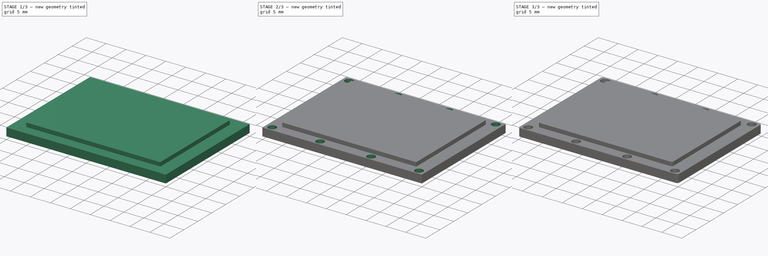
[diagram: build sequence overview — one tinted view per stage of 3, left to right]
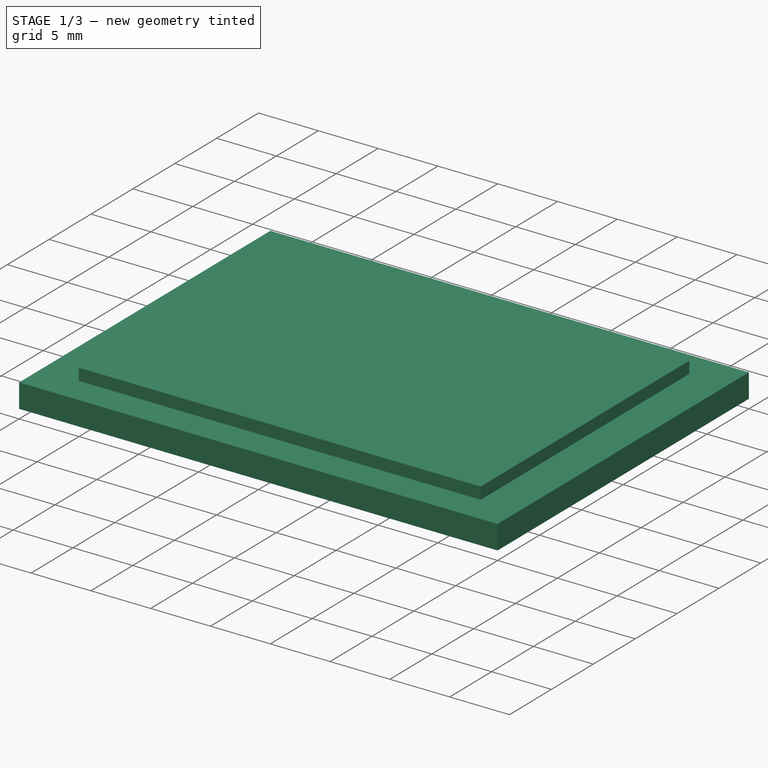
[diagram: stage 1 of 3 — iso view after this stage's code; geometry added in this stage tinted green]
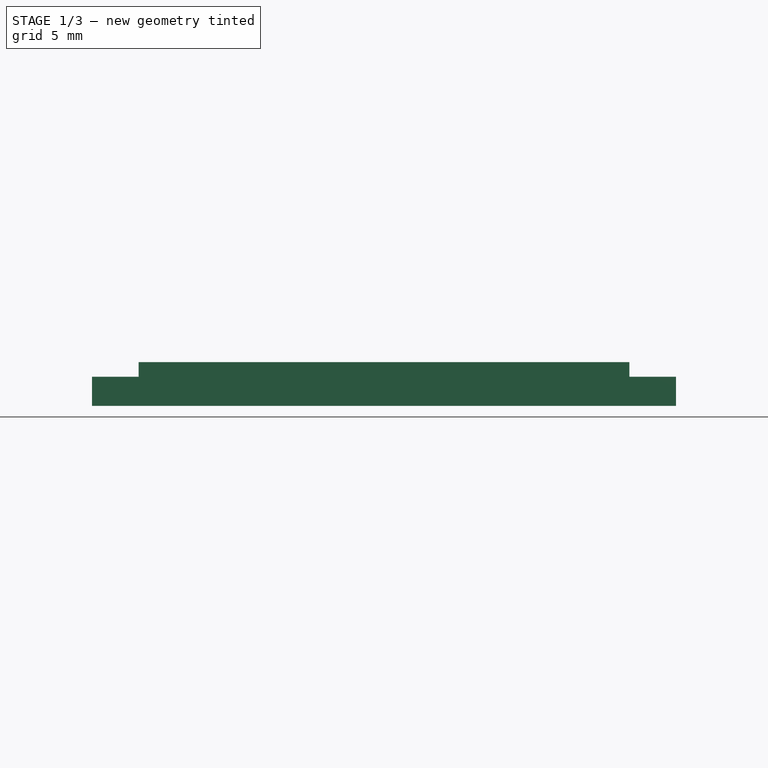
[diagram: stage 1 of 3 — front view after this stage's code; geometry added in this stage tinted green]
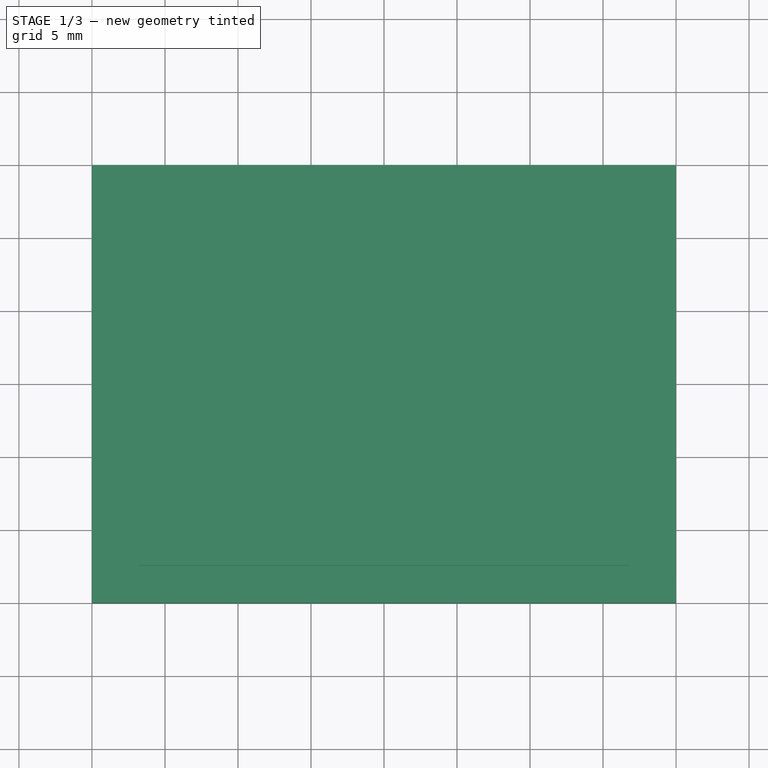
[diagram: stage 1 of 3 — top view after this stage's code; geometry added in this stage tinted green]
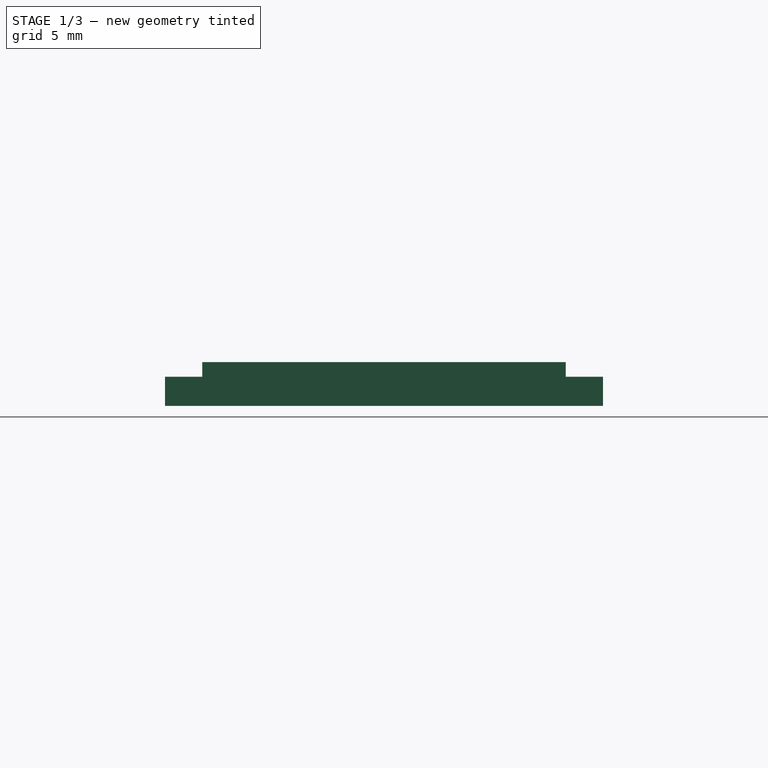
[diagram: stage 1 of 3 — right view after this stage's code; geometry added in this stage tinted green]
FCSTD DOCUMENT  (FreeCAD 0.18.4R)
Label: Sample_Holder_MKID_Cover_v1
License: All rights reserved
LicenseURL: http://en.wikipedia.org/wiki/All_rights_reserved
objects: Sketcher::SketchObject×4, PartDesign::Pad×2, PartDesign::Pocket×2, PartDesign::Fillet×1, PartDesign::Body×1
note: 14 computed .brp shape members not serialized (recipe doc carries the construction recipe); baked Part::Feature solids carry a one-line shape summary decoded from their .brp

FEATURE [Sketcher::SketchObject] Sketch
  MapMode = 5
  Placement = pos=(0,0,2) rot=(0,0,1;0rad)
  sketch-geometry (4):
    g0: LineSegment StartX=-20 StartY=15 StartZ=0 EndX=20 EndY=15 EndZ=0
    g1: LineSegment StartX=20 StartY=15 StartZ=0 EndX=20 EndY=-15 EndZ=0
    g2: LineSegment StartX=20 StartY=-15 StartZ=0 EndX=-20 EndY=-15 EndZ=0
    g3: LineSegment StartX=-20 StartY=-15 StartZ=0 EndX=-20 EndY=15 EndZ=0
  constraints (12):
    c: Coincident(g0,g1)
    c: Coincident(g1,g2)
    c: Coincident(g2,g3)
    c: Coincident(g3,g0)
    c: Horizontal(g0)
    c: Horizontal(g2)
    c: Vertical(g1)
    c: Vertical(g3)
    c: DistanceX(g2,g2) = 40
    c: DistanceY(g1,g1) = 30
    c: DistanceY(g-1,g0) = 15
    c: DistanceX(g0,g-1) = 20
FEATURE [PartDesign::Pad] Pad
  Length = 2
  Length2 = 100
  Placement = pos=(0,0,2) rot=(0,0,1;0rad)
  Profile = -> Sketch
  Type = 0
FEATURE [Sketcher::SketchObject] Sketch001
  MapMode = 5
  Placement = pos=(0,0,4) rot=(0,0,1;0rad)
  Support = -> [Pad]
  sketch-geometry (4):
    g0: LineSegment StartX=-16.8 StartY=12.45 StartZ=0 EndX=16.8 EndY=12.45 EndZ=0
    g1: LineSegment StartX=16.8 StartY=12.45 StartZ=0 EndX=16.8 EndY=-12.45 EndZ=0
    g2: LineSegment StartX=16.8 StartY=-12.45 StartZ=0 EndX=-16.8 EndY=-12.45 EndZ=0
    g3: LineSegment StartX=-16.8 StartY=-12.45 StartZ=0 EndX=-16.8 EndY=12.45 EndZ=0
  constraints (12):
    c: Coincident(g0,g1)
    c: Coincident(g1,g2)
    c: Coincident(g2,g3)
    c: Coincident(g3,g0)
    c: Horizontal(g0)
    c: Horizontal(g2)
    c: Vertical(g1)
    c: Vertical(g3)
    c: DistanceX(g2,g2) = 33.6
    c: DistanceY(g1,g1) = 24.9
    c: DistanceX(g-1,g0) = 16.8
    c: DistanceY(g1,g-1) = 12.45
FEATURE [PartDesign::Pad] Pad001
  BaseFeature = -> Pad
  Length = 1
  Length2 = 100
  Placement = pos=(0,0,2) rot=(0,0,1;0rad)
  Profile = -> Sketch001
  Type = 0
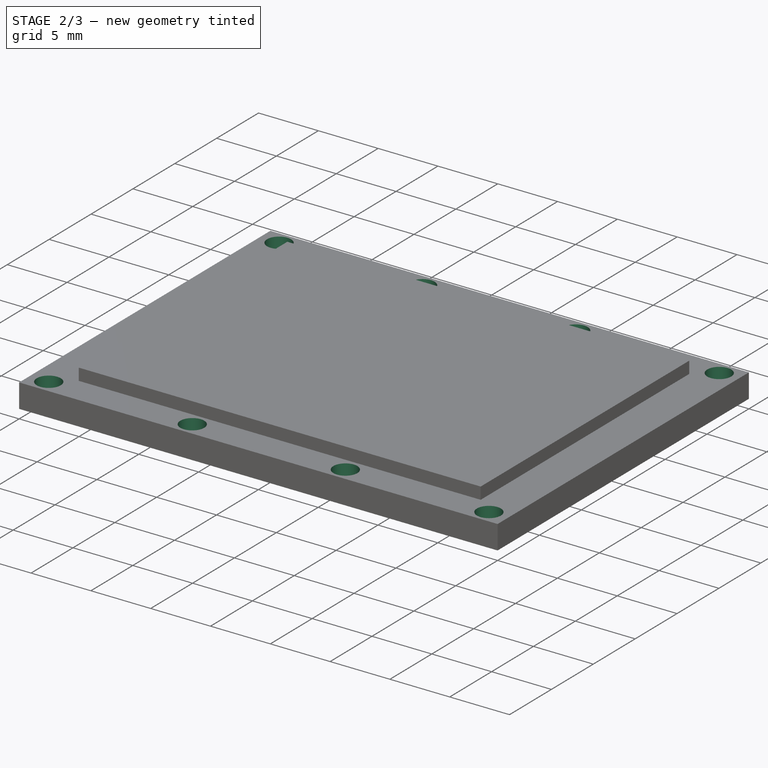
[diagram: stage 2 of 3 — iso view after this stage's code; geometry added in this stage tinted green]
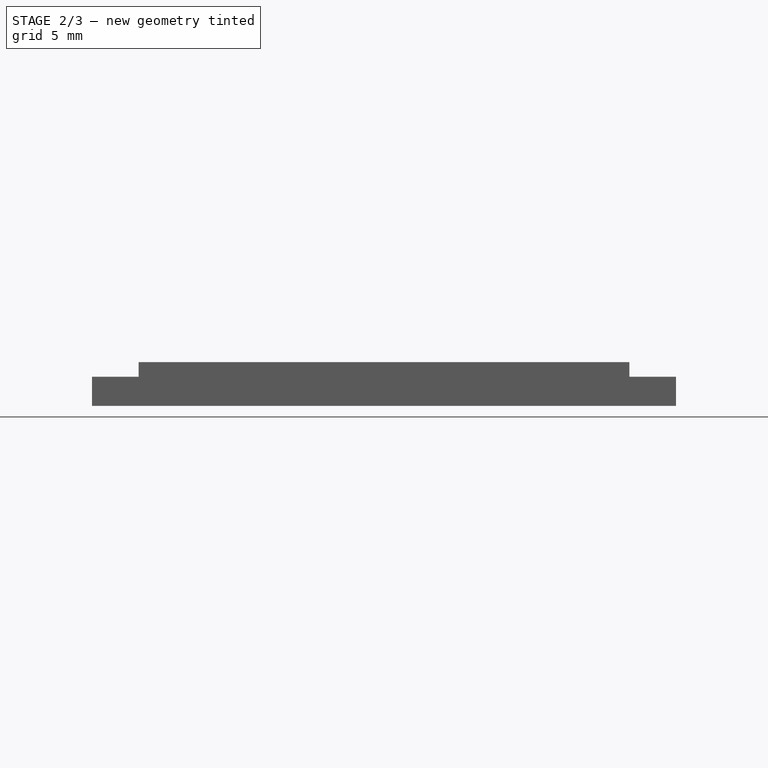
[diagram: stage 2 of 3 — front view after this stage's code; geometry added in this stage tinted green]
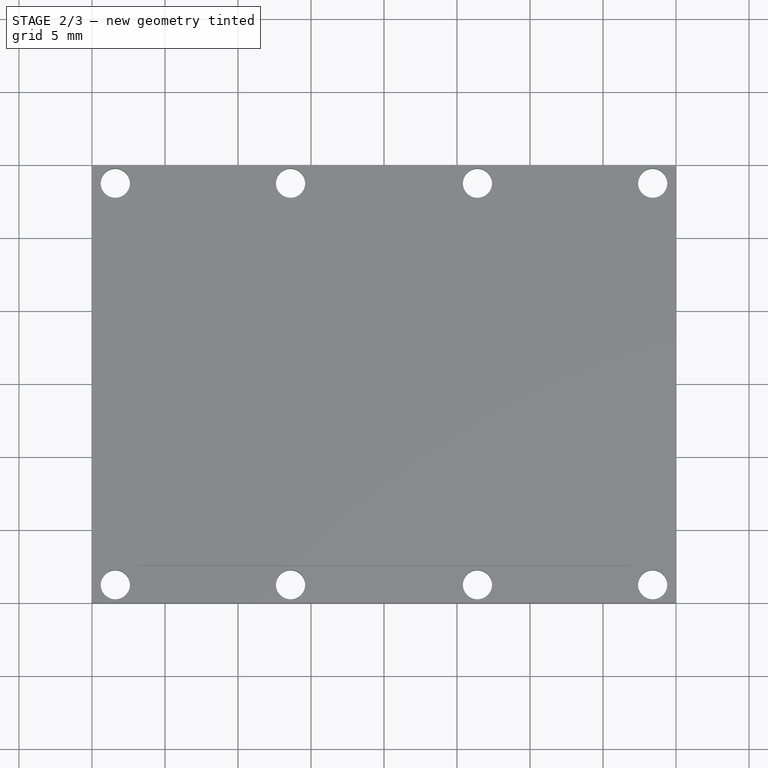
[diagram: stage 2 of 3 — top view after this stage's code; geometry added in this stage tinted green]
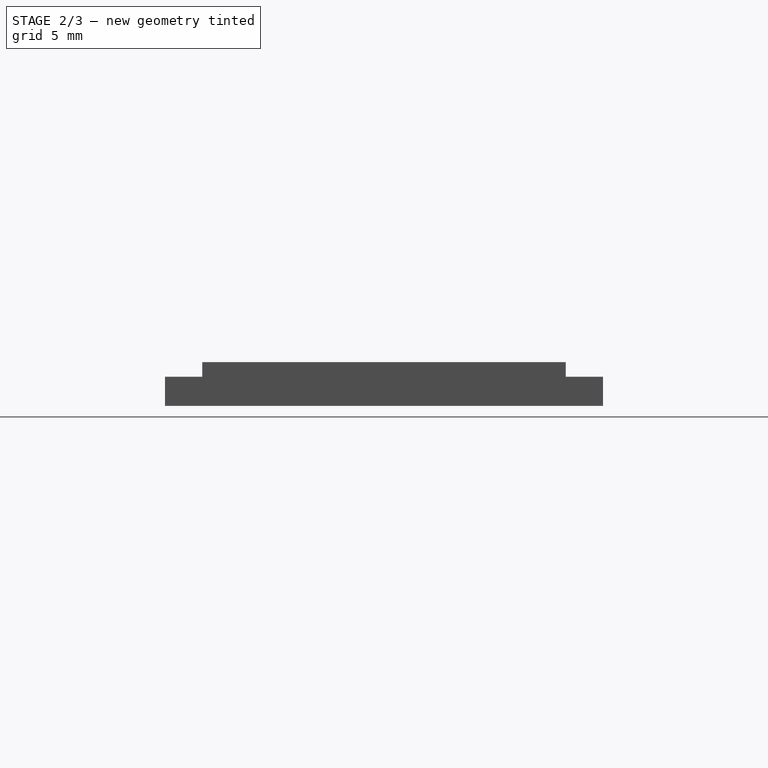
[diagram: stage 2 of 3 — right view after this stage's code; geometry added in this stage tinted green]
FEATURE [Sketcher::SketchObject] Sketch002
  MapMode = 5
  Placement = pos=(0,0,2) rot=(0,0,1;0rad)
  sketch-geometry (8):
    g0: Circle CenterX=-18.4 CenterY=13.75 CenterZ=0 NormalX=0 NormalY=0 NormalZ=1 AngleXU=0 Radius=1
    g1: Circle CenterX=-6.4 CenterY=13.75 CenterZ=0 NormalX=0 NormalY=0 NormalZ=1 AngleXU=0 Radius=1
    g2: Circle CenterX=6.4 CenterY=13.75 CenterZ=0 NormalX=0 NormalY=0 NormalZ=1 AngleXU=0 Radius=1
    g3: Circle CenterX=18.4 CenterY=13.75 CenterZ=0 NormalX=0 NormalY=0 NormalZ=1 AngleXU=0 Radius=1
    g4: Circle CenterX=18.4 CenterY=-13.75 CenterZ=0 NormalX=0 NormalY=0 NormalZ=1 AngleXU=0 Radius=1
    g5: Circle CenterX=6.4 CenterY=-13.75 CenterZ=0 NormalX=0 NormalY=0 NormalZ=1 AngleXU=0 Radius=1
    g6: Circle CenterX=-6.4 CenterY=-13.75 CenterZ=0 NormalX=0 NormalY=0 NormalZ=1 AngleXU=0 Radius=1
    g7: Circle CenterX=-18.4 CenterY=-13.75 CenterZ=0 NormalX=0 NormalY=0 NormalZ=1 AngleXU=0 Radius=1
  constraints (15):
    c: Symmetric(g0,g7,g-1)
    c: Symmetric(g1,g6,g-1)
    c: Symmetric(g2,g5,g-1)
    c: Symmetric(g3,g4,g-1)
    c: Radius(g1) = 1
    c: Equal(g1,g0)
    c: Equal(g1, g2-g7) x6
    c: Horizontal(g7,g6)
    c: Horizontal(g6,g5)
    c: Horizontal(g5,g4)
    c: DistanceY(g-1,g0) = 13.75
    c: DistanceX(g7,g6) = 12
    c: DistanceX(g5,g4) = 12
    c: DistanceX(g7,g-1) = 18.4
    c: DistanceX(g-1,g3) = 18.4
FEATURE [PartDesign::Pocket] Pocket
  BaseFeature = -> Pad001
  Length = 2
  Length2 = 100
  Placement = pos=(0,0,2) rot=(0,0,1;0rad)
  Profile = -> Sketch002
  Reversed = true
  Type = 0
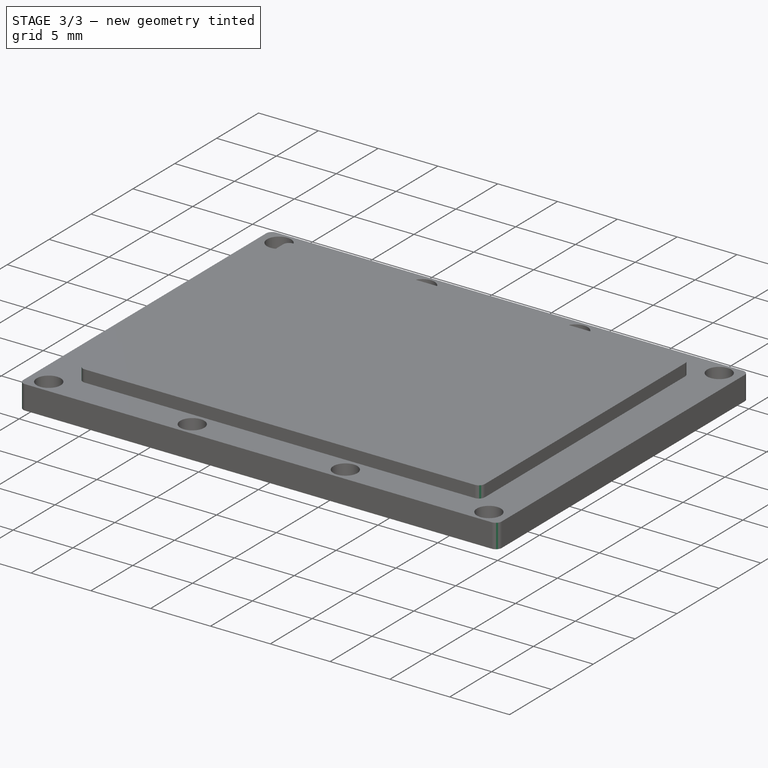
[diagram: stage 3 of 3 — iso view after this stage's code; geometry added in this stage tinted green]
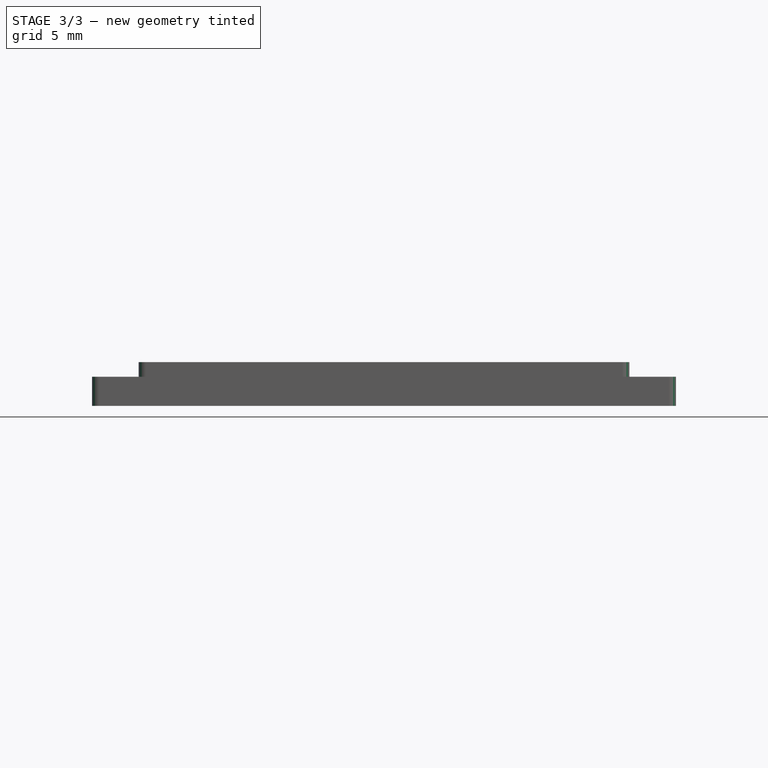
[diagram: stage 3 of 3 — front view after this stage's code; geometry added in this stage tinted green]
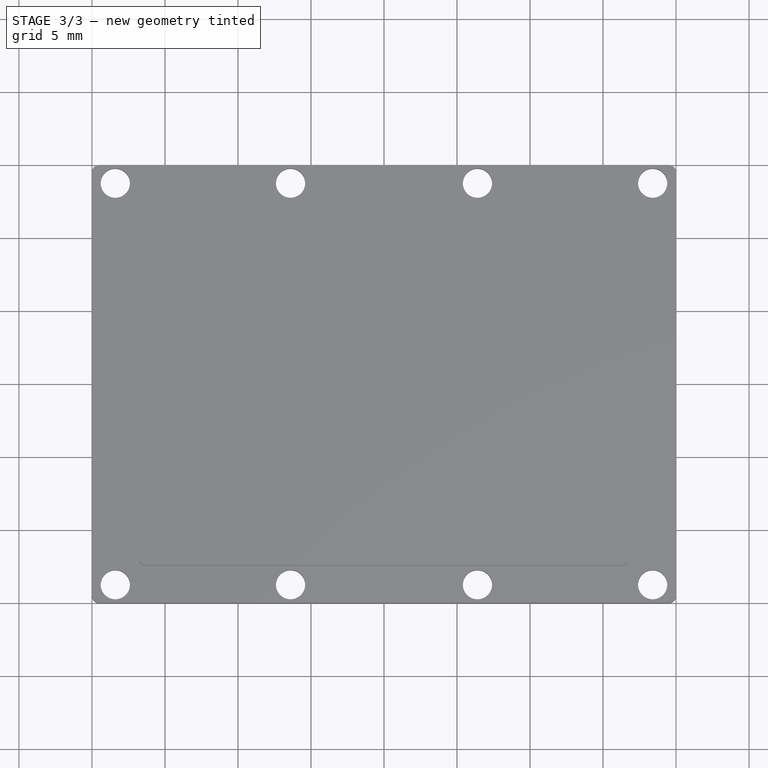
[diagram: stage 3 of 3 — top view after this stage's code; geometry added in this stage tinted green]
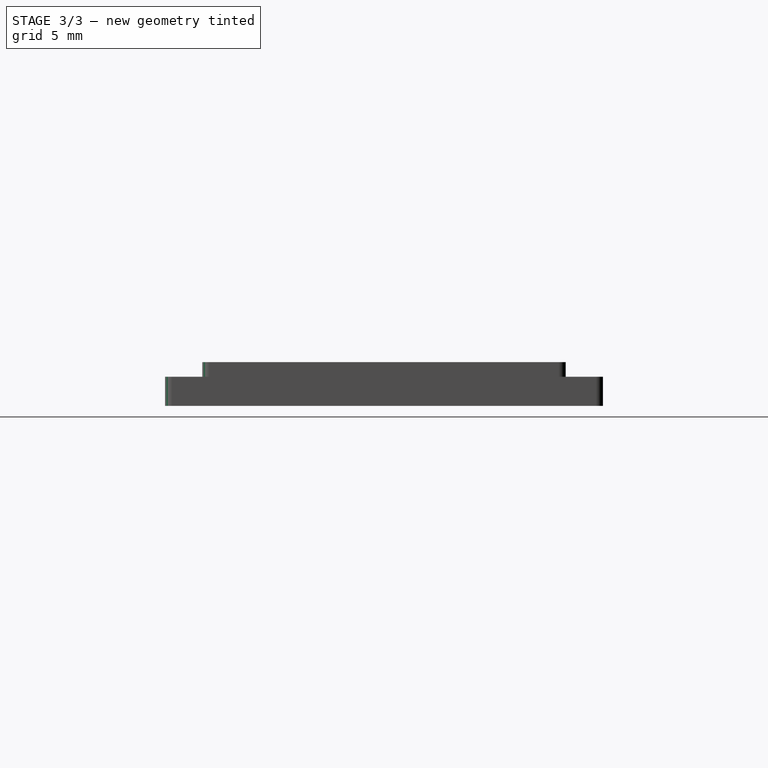
[diagram: stage 3 of 3 — right view after this stage's code; geometry added in this stage tinted green]
FEATURE [PartDesign::Fillet] Fillet
  Base = -> Pocket [Edge2,Edge42,Edge8,Edge46,Edge5,Edge44,Edge1,Edge41]
  BaseFeature = -> Pocket
  Placement = pos=(0,0,2) rot=(0,0,1;0rad)
  Radius = 0.5
FEATURE [Sketcher::SketchObject] Sketch003
  MapMode = 5
  Placement = pos=(0,0,2) rot=(1,0,0;3.14159rad)
  Support = -> [Fillet]
  sketch-geometry (6):
    g0: Circle CenterX=-10 CenterY=5 CenterZ=0 NormalX=0 NormalY=0 NormalZ=1 AngleXU=0 Radius=1
    g1: Circle CenterX=0 CenterY=5 CenterZ=0 NormalX=0 NormalY=0 NormalZ=1 AngleXU=0 Radius=1
    g2: Circle CenterX=10 CenterY=5 CenterZ=0 NormalX=0 NormalY=0 NormalZ=1 AngleXU=0 Radius=1
    g3: Circle CenterX=-10 CenterY=-5 CenterZ=0 NormalX=0 NormalY=0 NormalZ=1 AngleXU=0 Radius=1
    g4: Circle CenterX=0 CenterY=-5 CenterZ=0 NormalX=0 NormalY=0 NormalZ=1 AngleXU=0 Radius=1
    g5: Circle CenterX=10 CenterY=-5 CenterZ=0 NormalX=0 NormalY=0 NormalZ=1 AngleXU=0 Radius=1
  constraints (15):
    c: Symmetric(g0,g3,g-1)
    c: Symmetric(g1,g4,g-1)
    c: Symmetric(g2,g5,g-1)
    c: Radius(g5) = 1
    c: Equal(g5,g4)
    c: Equal(g5,g1)
    c: Equal(g5,g2)
    c: Equal(g5,g0)
    c: Equal(g5,g3)
    c: Horizontal(g2,g1)
    c: Horizontal(g1,g0)
    c: DistanceY(g-1,g1) = 5
    c: DistanceX(g0,g1) = 10
    c: DistanceX(g1,g2) = 10
    c: DistanceX(g4,g-1) = 0
FEATURE [PartDesign::Pocket] Pocket001
  BaseFeature = -> Fillet
  Length = 2
  Length2 = 100
  Placement = pos=(0,0,2) rot=(0,0,1;0rad)
  Profile = -> Sketch003
  Type = 0
FEATURE [PartDesign::Body] Body
  Group = -> [Sketch,Pad,Sketch001,Pad001,Sketch002,Pocket,Fillet,Sketch003,Pocket001]
  Origin = -> Origin
  Tip = -> Pocket001
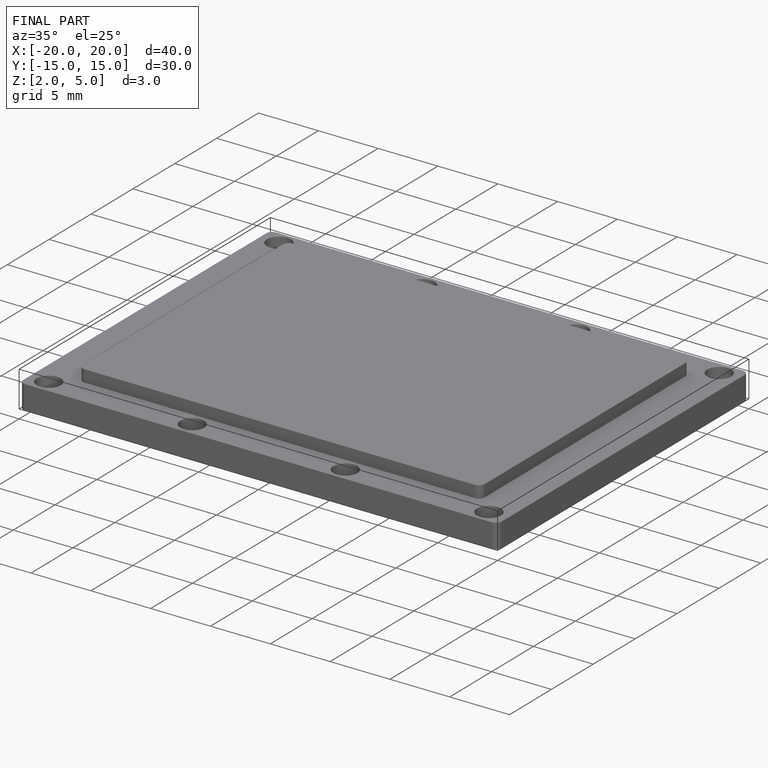
[diagram: finished part — iso view with bounding-box wireframe]
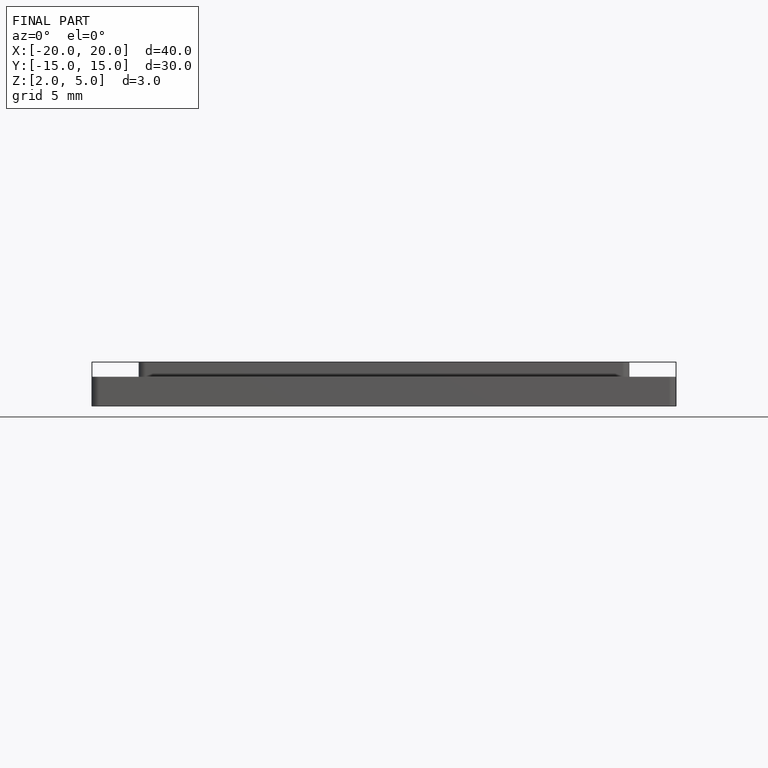
[diagram: finished part — front view with bounding-box wireframe]
